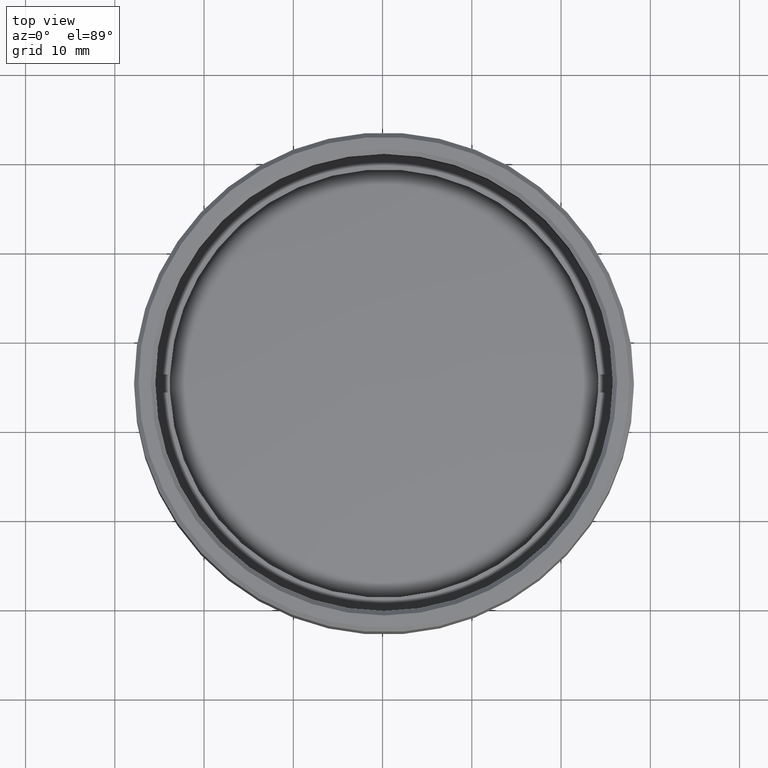
[diagram: clean part render]
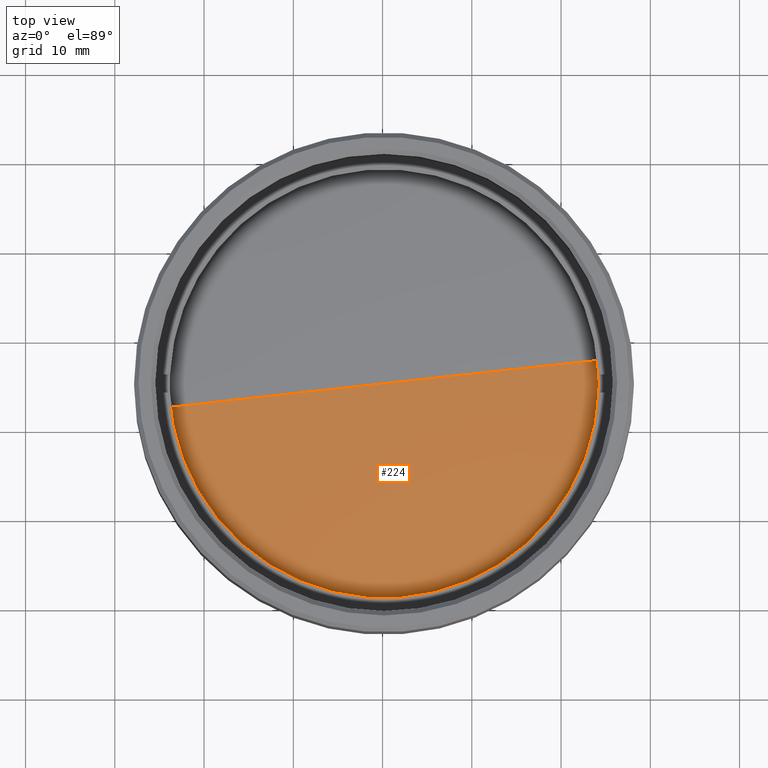
[diagram: same view with one face highlighted and labeled with its STEP entity id]
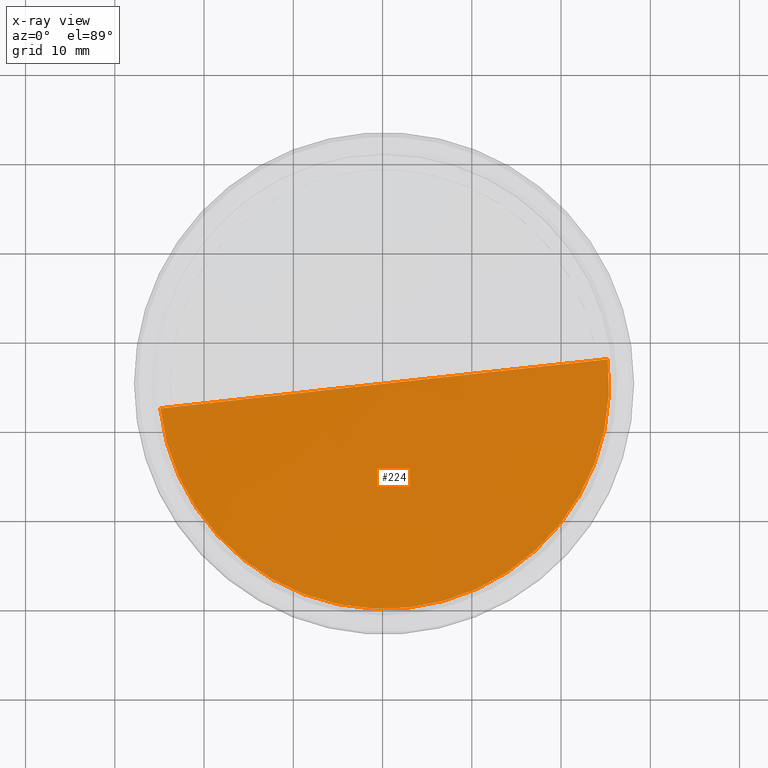
[diagram: x-ray of the same camera — body ghosted, the highlighted face saturated]
A machine part, top view. The second image highlights one B-rep face of the part: STEP entity #224.
The next image is the same camera in x-ray: the body ghosted, the highlighted face saturated — about 0% of this face is hidden behind the body in this view.
In plain terms, the highlighted spherical surface has radius 219.8 mm.
Its self-contained STEP definition (entity closure, byte-faithful):
#14 = ORIENTED_EDGE ( 'NONE', *, *, #1719, .T. ) ;
#32 = AXIS2_PLACEMENT_3D ( 'NONE', #1191, #1726, #1587 ) ;
#71 = CARTESIAN_POINT ( 'NONE',  ( 25.22295081967210351, 3.099761734235265013E-15, -1.452014545706479920 ) ) ;
#92 = DIRECTION ( 'NONE',  ( -9.456644452590318763E-17, 0.000000000000000000, 1.000000000000000000 ) ) ;
#129 = VERTEX_POINT ( 'NONE', #71 ) ;
#224 = ADVANCED_FACE ( 'NONE', ( #1041 ), #354, .T. ) ;
#303 = VERTEX_POINT ( 'NONE', #973 ) ;
#354 = SPHERICAL_SURFACE ( 'NONE', #32, 219.7999999999999829 ) ;
#450 = AXIS2_PLACEMENT_3D ( 'NONE', #941, #1063, #1747 ) ;
#651 = CIRCLE ( 'NONE', #772, 25.22295081967214969 ) ;
#772 = AXIS2_PLACEMENT_3D ( 'NONE', #1571, #92, #1167 ) ;
#941 = CARTESIAN_POINT ( 'NONE',  ( 0.000000000000000000, 0.000000000000000000, -219.7999999999999829 ) ) ;
#973 = CARTESIAN_POINT ( 'NONE',  ( -25.22295081967214969, 0.000000000000000000, -1.452014545706483917 ) ) ;
#1041 = FACE_OUTER_BOUND ( 'NONE', #1352, .T. ) ;
#1063 = DIRECTION ( 'NONE',  ( 0.000000000000000000, -1.000000000000000000, 0.000000000000000000 ) ) ;
#1167 = DIRECTION ( 'NONE',  ( -1.000000000000000000, 0.000000000000000000, -9.456644452590315065E-17 ) ) ;
#1191 = CARTESIAN_POINT ( 'NONE',  ( 0.000000000000000000, 0.000000000000000000, -219.7999999999999829 ) ) ;
#1352 = EDGE_LOOP ( 'NONE', ( #14, #1469 ) ) ;
#1419 = EDGE_CURVE ( 'NONE', #129, #303, #1445, .T. ) ;
#1445 = CIRCLE ( 'NONE', #450, 219.7999999999999829 ) ;
#1469 = ORIENTED_EDGE ( 'NONE', *, *, #1419, .T. ) ;
#1571 = CARTESIAN_POINT ( 'NONE',  ( -2.139193291894919622E-14, 0.000000000000000000, -1.452014545706481918 ) ) ;
#1587 = DIRECTION ( 'NONE',  ( -1.000000000000000000, 0.000000000000000000, -1.262765041657366403E-16 ) ) ;
#1719 = EDGE_CURVE ( 'NONE', #303, #129, #651, .T. ) ;
#1726 = DIRECTION ( 'NONE',  ( -1.262765041657366403E-16, 0.000000000000000000, 1.000000000000000000 ) ) ;
#1747 = DIRECTION ( 'NONE',  ( 0.000000000000000000, 0.000000000000000000, -1.000000000000000000 ) ) ;